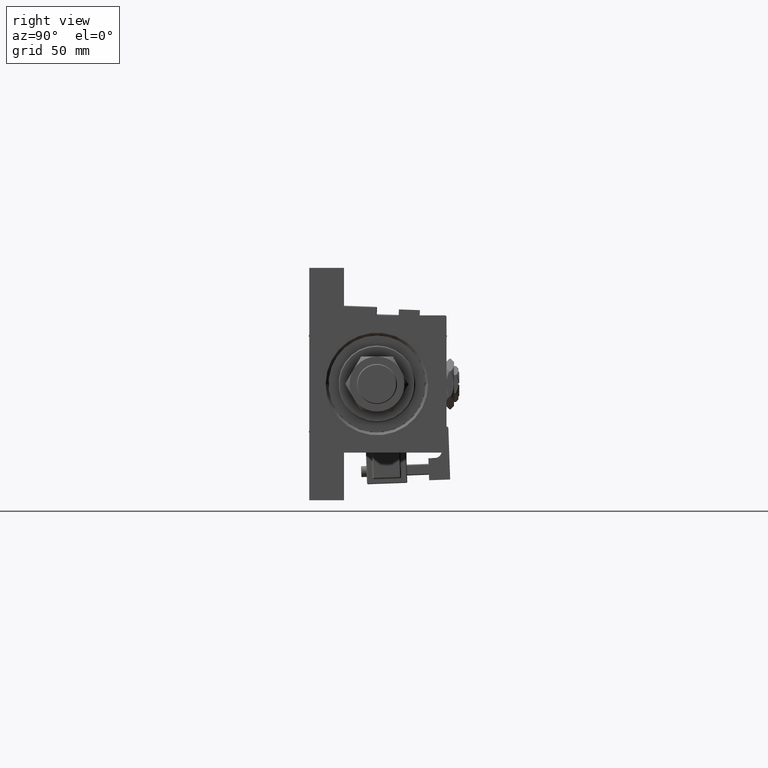
[diagram: clean part render]
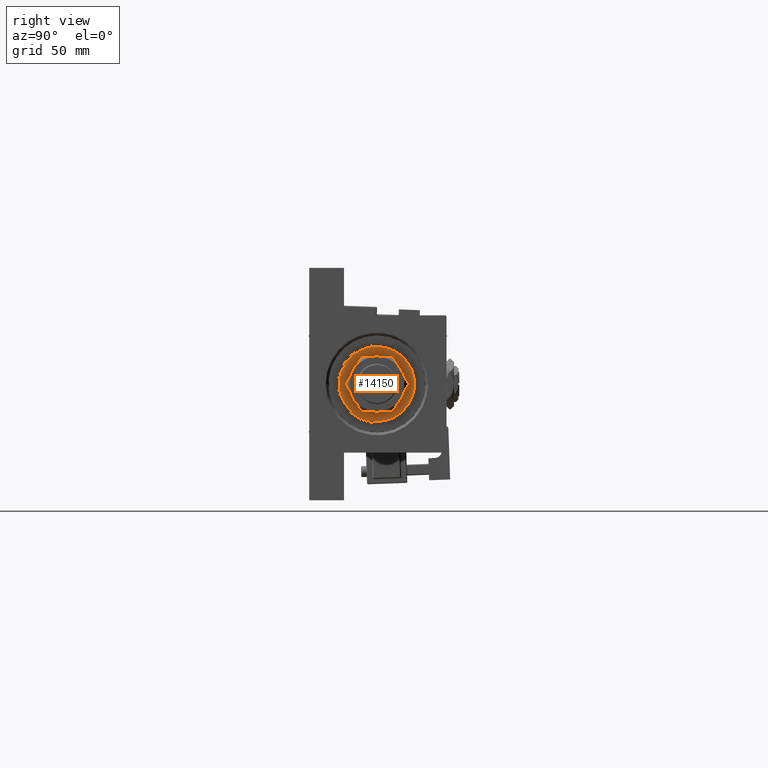
[diagram: same view with one face highlighted and labeled with its STEP entity id]
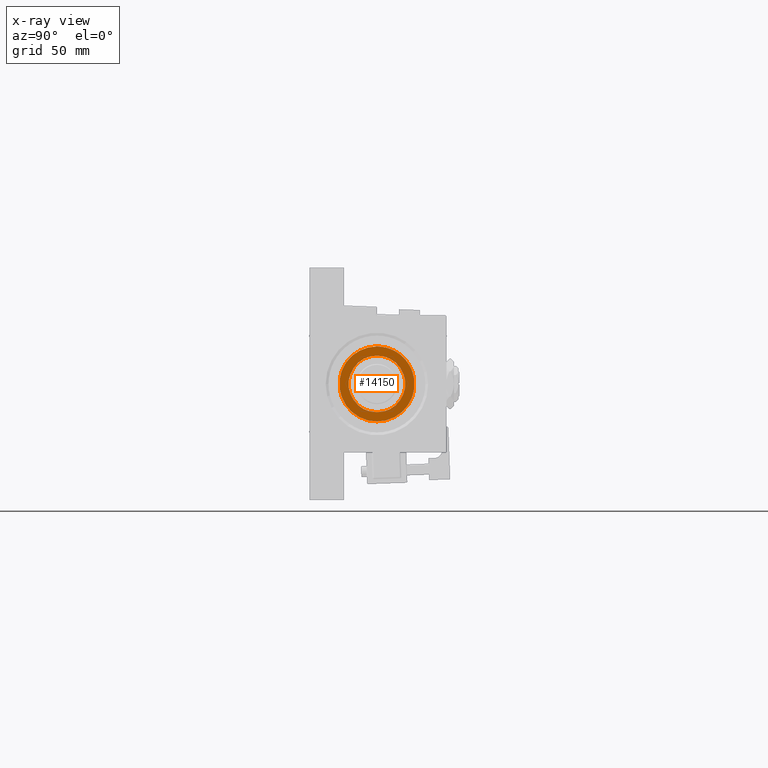
[diagram: x-ray of the same camera — body ghosted, the highlighted face saturated]
A machine part, right view. The second image highlights one B-rep face of the part: STEP entity #14150.
The next image is the same camera in x-ray: the body ghosted, the highlighted face saturated — about 0% of this face is hidden behind the body in this view.
In plain terms, the highlighted planar face has unit normal (1, 0, 0).
Its self-contained STEP definition (entity closure, byte-faithful):
#961 = PLANE ( 'NONE',  #4557 ) ;
#2198 = ORIENTED_EDGE ( 'NONE', *, *, #31017, .T. ) ;
#3164 = ORIENTED_EDGE ( 'NONE', *, *, #46720, .F. ) ;
#3939 = CARTESIAN_POINT ( 'NONE',  ( 0.000000000000000000, 0.000000000000000000, 37.69999999999999574 ) ) ;
#4557 = AXIS2_PLACEMENT_3D ( 'NONE', #3939, #17261, #32787 ) ;
#4923 = CIRCLE ( 'NONE', #41639, 20.49999999999999645 ) ;
#4966 = FACE_BOUND ( 'NONE', #7880, .T. ) ;
#5178 = AXIS2_PLACEMENT_3D ( 'NONE', #30910, #38672, #14861 ) ;
#6884 = CARTESIAN_POINT ( 'NONE',  ( 20.49999999999999645, 2.541142108230757480E-15, 37.69999999999999574 ) ) ;
#7880 = EDGE_LOOP ( 'NONE', ( #45735, #3164 ) ) ;
#12988 = VERTEX_POINT ( 'NONE', #6884 ) ;
#13422 = DIRECTION ( 'NONE',  ( 0.000000000000000000, 0.000000000000000000, 1.000000000000000000 ) ) ;
#14150 = ADVANCED_FACE ( 'NONE', ( #4966, #37577 ), #961, .T. ) ;
#14483 = AXIS2_PLACEMENT_3D ( 'NONE', #25111, #52726, #29128 ) ;
#14861 = DIRECTION ( 'NONE',  ( 1.000000000000000000, 0.000000000000000000, 0.000000000000000000 ) ) ;
#17261 = DIRECTION ( 'NONE',  ( 0.000000000000000000, 0.000000000000000000, 1.000000000000000000 ) ) ;
#20429 = CARTESIAN_POINT ( 'NONE',  ( 0.000000000000000000, 0.000000000000000000, 37.69999999999999574 ) ) ;
#23630 = ORIENTED_EDGE ( 'NONE', *, *, #25364, .T. ) ;
#24787 = CIRCLE ( 'NONE', #5178, 15.50000000000000000 ) ;
#25111 = CARTESIAN_POINT ( 'NONE',  ( 0.000000000000000000, 0.000000000000000000, 37.69999999999999574 ) ) ;
#25364 = EDGE_CURVE ( 'NONE', #38694, #12988, #35592, .T. ) ;
#27437 = CARTESIAN_POINT ( 'NONE',  ( -15.50000000000000000, 1.898202538678397557E-15, 37.69999999999999574 ) ) ;
#28694 = CARTESIAN_POINT ( 'NONE',  ( 0.000000000000000000, 0.000000000000000000, 37.69999999999999574 ) ) ;
#28724 = DIRECTION ( 'NONE',  ( 1.000000000000000000, 0.000000000000000000, 0.000000000000000000 ) ) ;
#29128 = DIRECTION ( 'NONE',  ( 1.000000000000000000, 0.000000000000000000, 0.000000000000000000 ) ) ;
#30910 = CARTESIAN_POINT ( 'NONE',  ( 0.000000000000000000, 0.000000000000000000, 37.69999999999999574 ) ) ;
#31017 = EDGE_CURVE ( 'NONE', #12988, #38694, #4923, .T. ) ;
#31472 = VERTEX_POINT ( 'NONE', #42537 ) ;
#32187 = AXIS2_PLACEMENT_3D ( 'NONE', #28694, #13422, #37238 ) ;
#32787 = DIRECTION ( 'NONE',  ( 1.000000000000000000, 0.000000000000000000, -0.000000000000000000 ) ) ;
#32924 = CARTESIAN_POINT ( 'NONE',  ( -20.49999999999999645, 0.000000000000000000, 37.69999999999999574 ) ) ;
#35592 = CIRCLE ( 'NONE', #32187, 20.49999999999999645 ) ;
#37238 = DIRECTION ( 'NONE',  ( 1.000000000000000000, 0.000000000000000000, 0.000000000000000000 ) ) ;
#37577 = FACE_OUTER_BOUND ( 'NONE', #38827, .T. ) ;
#38672 = DIRECTION ( 'NONE',  ( 0.000000000000000000, 0.000000000000000000, 1.000000000000000000 ) ) ;
#38694 = VERTEX_POINT ( 'NONE', #32924 ) ;
#38827 = EDGE_LOOP ( 'NONE', ( #23630, #2198 ) ) ;
#40731 = EDGE_CURVE ( 'NONE', #31472, #42518, #24787, .T. ) ;
#40777 = DIRECTION ( 'NONE',  ( 0.000000000000000000, 0.000000000000000000, 1.000000000000000000 ) ) ;
#41639 = AXIS2_PLACEMENT_3D ( 'NONE', #20429, #40777, #28724 ) ;
#41818 = CIRCLE ( 'NONE', #14483, 15.50000000000000000 ) ;
#42518 = VERTEX_POINT ( 'NONE', #27437 ) ;
#42537 = CARTESIAN_POINT ( 'NONE',  ( 15.50000000000000000, 0.000000000000000000, 37.69999999999999574 ) ) ;
#45735 = ORIENTED_EDGE ( 'NONE', *, *, #40731, .F. ) ;
#46720 = EDGE_CURVE ( 'NONE', #42518, #31472, #41818, .T. ) ;
#52726 = DIRECTION ( 'NONE',  ( 0.000000000000000000, 0.000000000000000000, 1.000000000000000000 ) ) ;